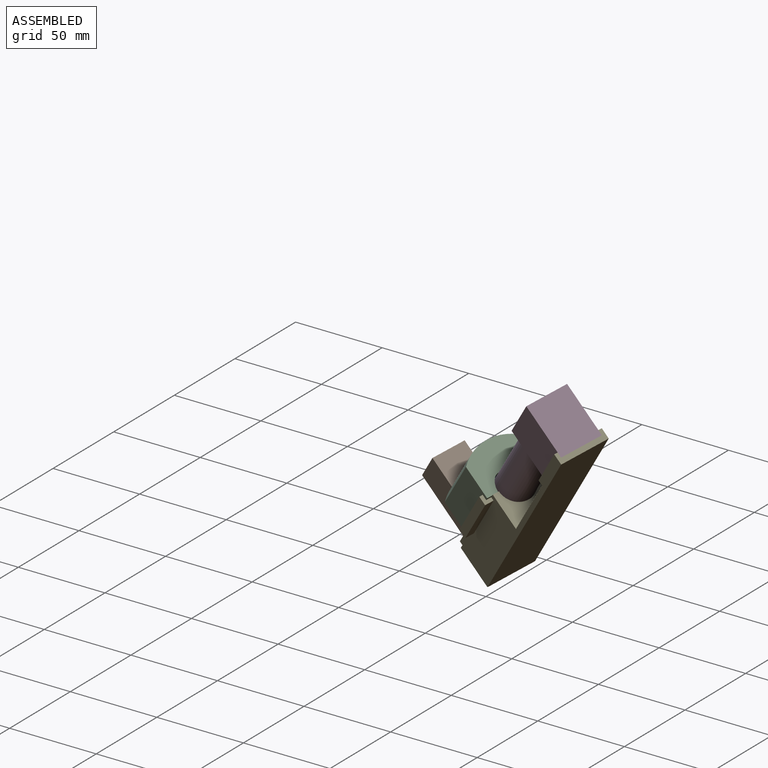
[diagram: assembled view]
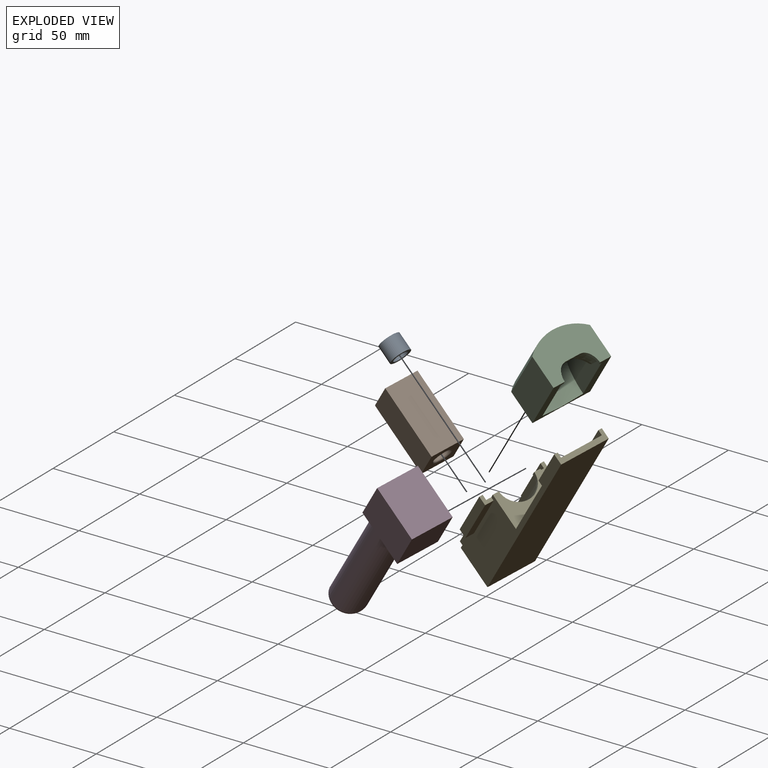
[diagram: exploded view]
GUIDED TOUR — MATED ASSEMBLY (Onshape document 58ab122924d08a0fd03403dd, AutoMate assembly 58ab122924d08a0fd03403dd_60d933f2057dc8772b50762a_59f8ce27216a1e3e3a82eb81_default)

This assembly has 5 components, labeled P0..P4 below (a component is one placed occurrence of a part; the same part can appear more than once), held together by 11 mates. A mate is a constraint between two components; its type names the relative motion it leaves free:
  PLANAR — leaves sliding in the plane through the listed point (normal = the listed direction) and rotation about that normal free,
  SLIDER — leaves translation along the listed axis free.
Axis/direction vectors are unit vectors and 'through' points are millimeter coordinates, both in the assembly's world frame.

MATES
  1. PLANAR "Planar 5": P1 <-> P4, direction (0.754, -0.121, -0.646) through (-17.19, -39.83, -32.39) mm
  2. PLANAR "Planar 4": P2 <-> P4, direction (-0.561, 0.395, -0.728) through (3.68, -24.00, -11.01) mm
  3. PLANAR "Planar 9": P3 <-> P4, direction (-0.343, -0.911, -0.230) through (69.82, -102.00, 72.94) mm
  4. PLANAR "Planar 6": P1 <-> P4, direction (-0.343, -0.911, -0.230) through (-26.38, -41.57, -11.83) mm
  5. PLANAR "Planar 10": P3 <-> P4, direction (-0.561, 0.395, -0.728) through (64.18, -80.35, 47.82) mm
  6. SLIDER "Slider 1": P2 <-> P0, axis (0.754, -0.121, -0.646) through (-13.16, -42.00, 11.43) mm
  7. PLANAR "Planar 1": P3 <-> P4, direction (0.754, -0.121, -0.646) through (76.83, -86.95, 55.10) mm
  8. PLANAR "Planar 7": P1 <-> P2, direction (0.561, -0.395, 0.728) through (-17.23, -37.07, -2.00) mm
  9. PLANAR "Planar 2": P4 <-> P2, direction (-0.754, 0.121, 0.646) through (2.30, -42.62, -9.14) mm
  10. PLANAR "Planar 3": P2 <-> P4, direction (0.343, 0.911, 0.230) through (15.73, -32.50, 4.63) mm
  11. PLANAR "Planar 8": P0 <-> P3, direction (0.754, -0.121, -0.646) through (-0.34, -44.05, 0.43) mm

ASSEMBLY ORDER
  1. P4 — the base component [order verified]
  2. P2 [order verified]
  3. P0 [order verified]
  4. P3 [order verified]
  5. P1 [order verified]
(P2 verified with a relaxed clearance tolerance: the source model stores slight part interference there.)
Order-tag legend:
  [order verified] — this step's position reverses a verified removal order: the component was checked to insert without passing through the ones already placed.

Of the 5 components, 1 carries the full construction recipe — the FeatureScript program that regenerates the part's solid from scratch; the rest are supplied as boundary geometry only.
Each toured component is shown spotlighted twice — in the assembled view, then in the exploded view, where a leader line traces a displaced component back to its assembled socket (saturated green if recipe-attached, orange if geometry-only; every other component desaturated gray) — followed by its recipe or geometry summary and the mates that hold it.
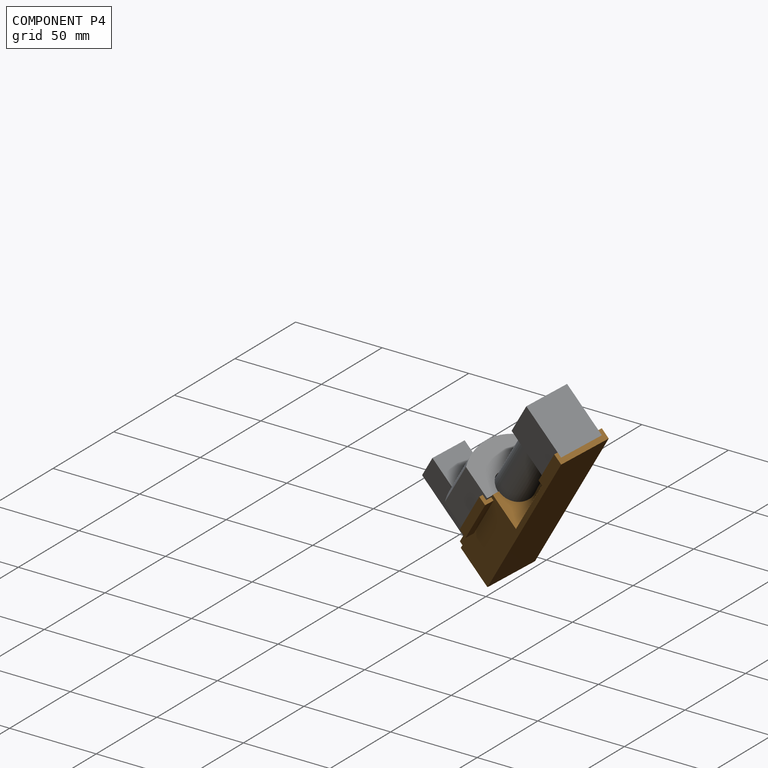
[diagram: component P4 — assembled]
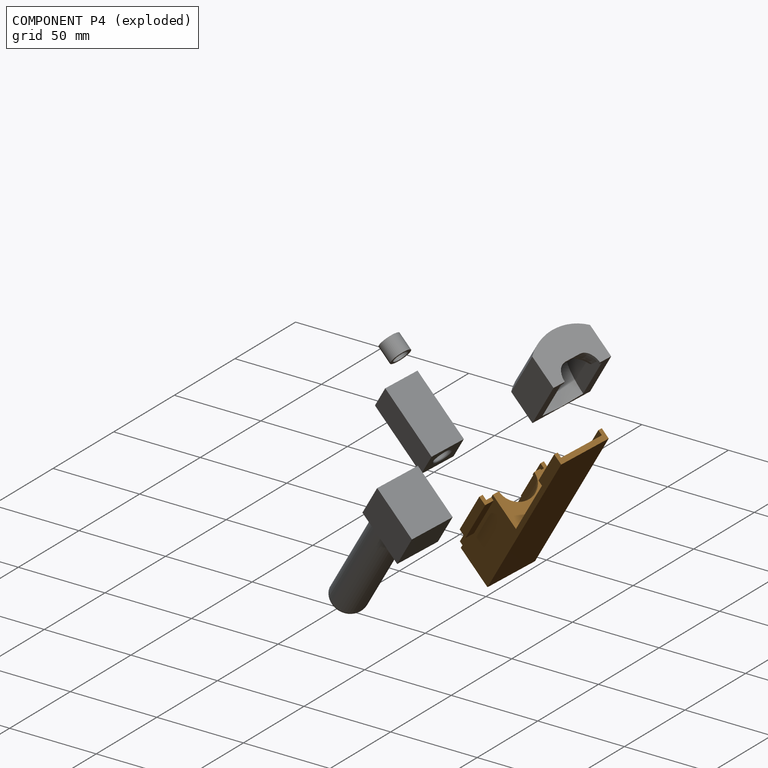
[diagram: component P4 — exploded]
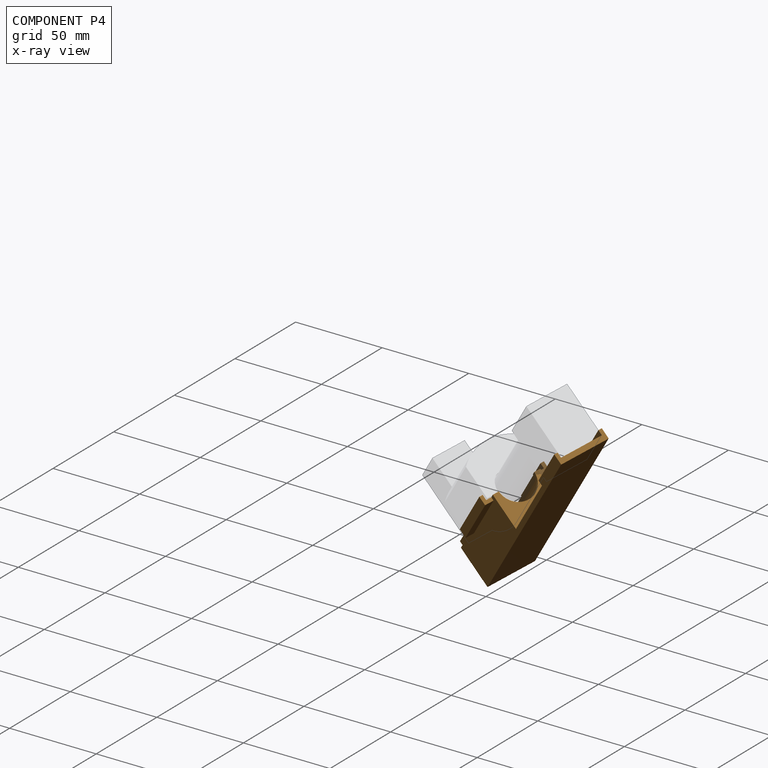
[diagram: component P4 — x-ray view]
COMPONENT P4 — geometry summary (no construction recipe available for this part):
  bounding box: 150.0 x 38.0 x 26.0 mm
  B-rep topology: 1 solid, 48 faces, 272 edges
  volume: 41215 mm^3 (28% of its bounding box)
  symmetry: mirror-symmetric across its x mid-plane
Held by: PLANAR mate "Planar 5" to P1; PLANAR mate "Planar 4" to P2; PLANAR mate "Planar 9" to P3; PLANAR mate "Planar 6" to P1; PLANAR mate "Planar 10" to P3; PLANAR mate "Planar 1" to P3; PLANAR mate "Planar 2" to P2; PLANAR mate "Planar 3" to P2.
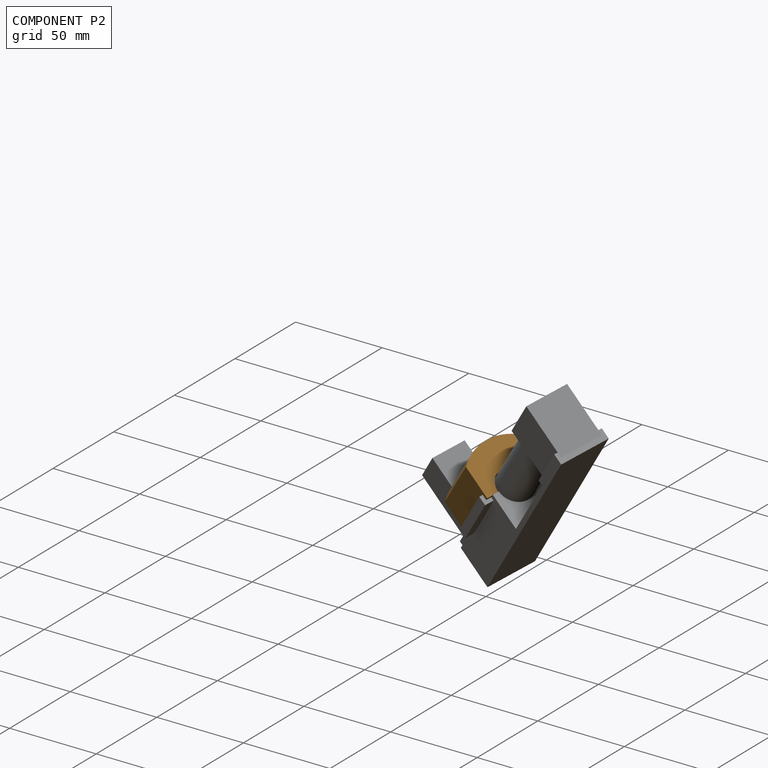
[diagram: component P2 — assembled]
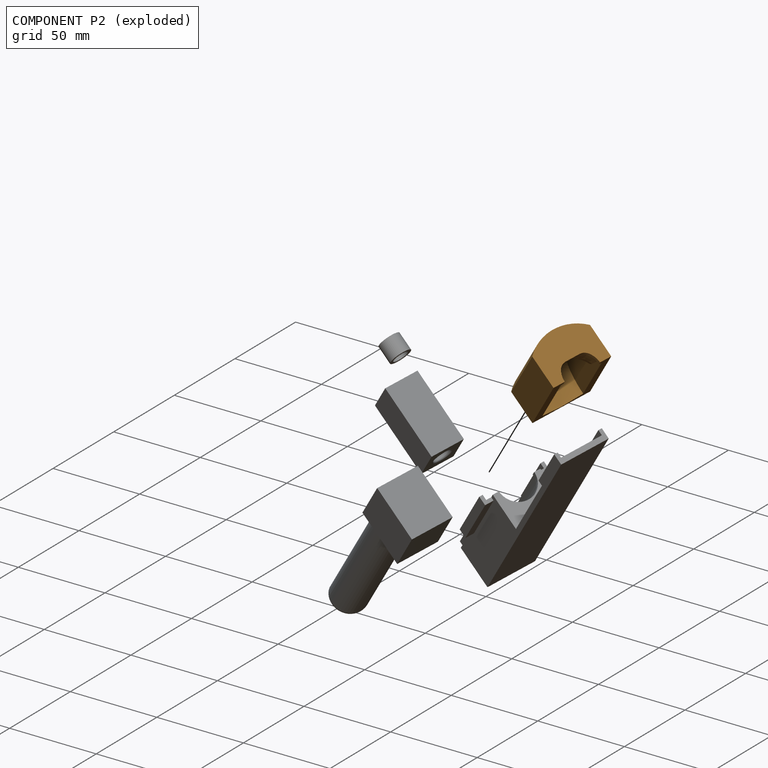
[diagram: component P2 — exploded]
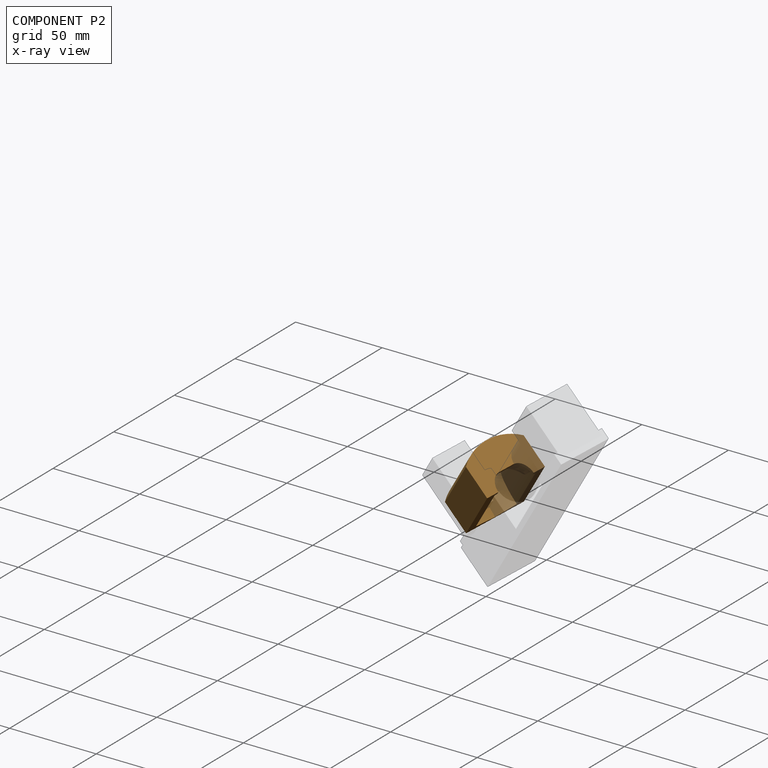
[diagram: component P2 — x-ray view]
COMPONENT P2 — geometry summary (no construction recipe available for this part):
  bounding box: 47.2 x 43.8 x 25.8 mm
  B-rep topology: 1 solid, 32 faces, 209 edges
  volume: 19322 mm^3 (36% of its bounding box)
  symmetry: mirror-symmetric across its z mid-plane
Held by: PLANAR mate "Planar 4" to P4; SLIDER mate "Slider 1" to P0; PLANAR mate "Planar 7" to P1; PLANAR mate "Planar 2" to P4; PLANAR mate "Planar 3" to P4.
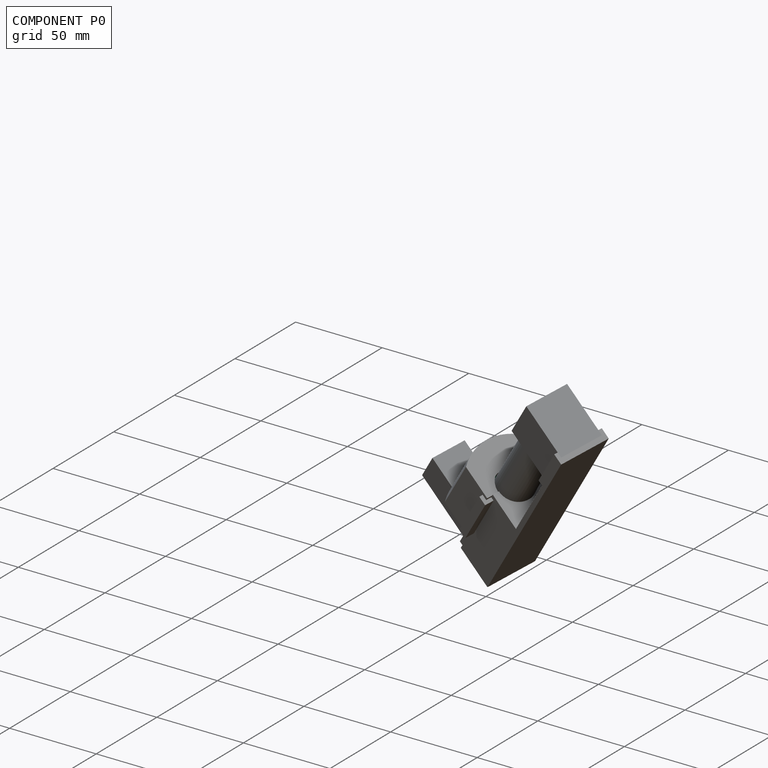
[diagram: component P0 — assembled]
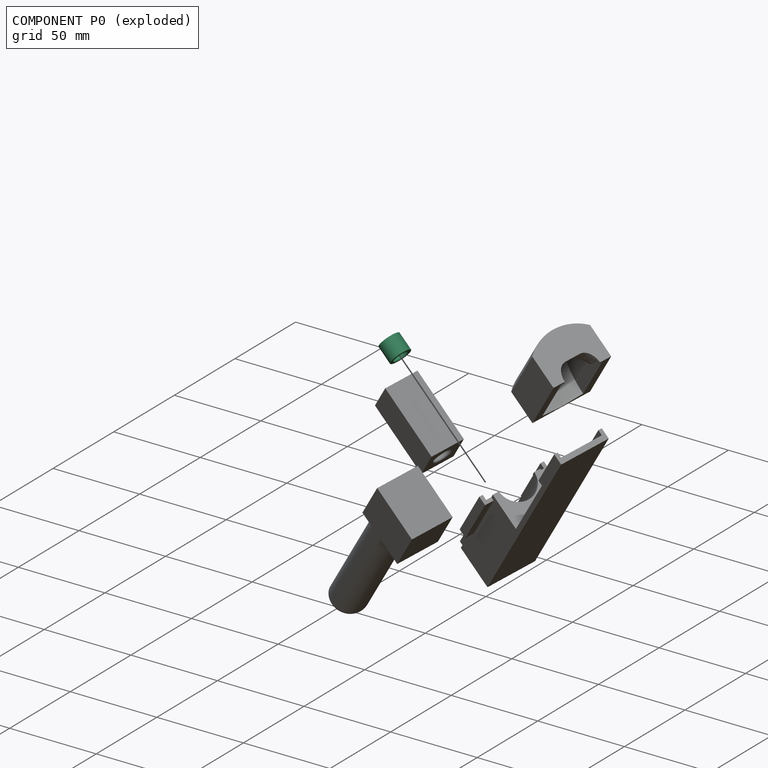
[diagram: component P0 — exploded]
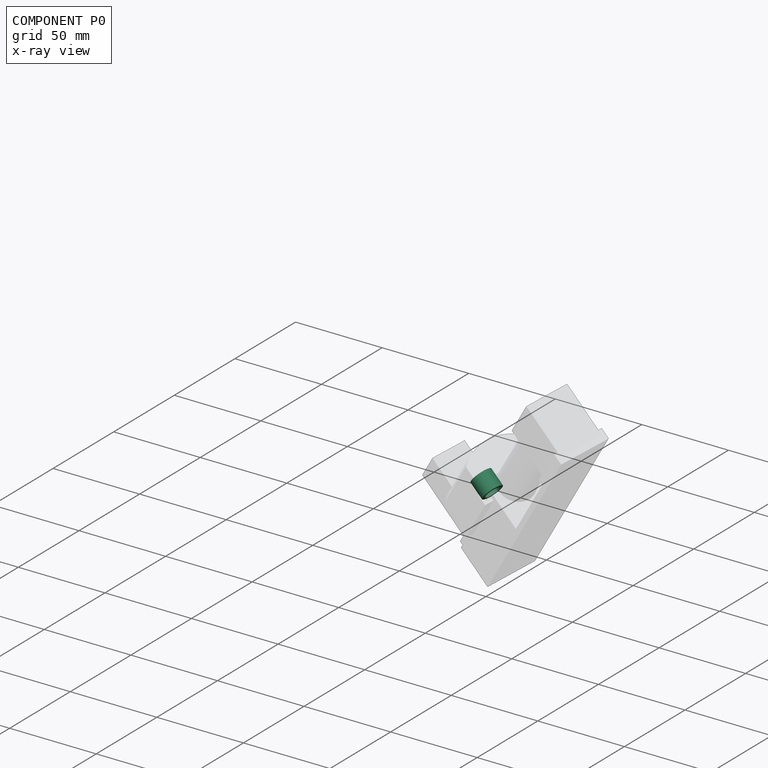
[diagram: component P0 — x-ray view]
COMPONENT P0 — recipe-attached (CADFS 00547569, mesh-verified: the recipe's output STEP matches this component's geometry to below the mesh-comparison resolution (tessellation chordal tolerance ~0.0295 mm)).
Held by: SLIDER mate "Slider 1" to P2; PLANAR mate "Planar 8" to P3.
Construction recipe (FeatureScript — the CAD program that rebuilds this solid; sketch coordinates are in the units given by the * unit suffixes, e.g. mm):

FeatureScript 1511;
import(path : "onshape/std/geometry.fs", version : "1511.0");
import(path : "onshape/std/common.fs", version : "1511.0");
const mm = millimeter;
const VERTEX = EntityType.VERTEX;
const EDGE = EntityType.EDGE;
const FACE = EntityType.FACE;
const BODY = EntityType.BODY;
function v(x, y){return vector(x, y);}
function OD(order){return orderDisambiguation(order);}
function OSD(set){return originalSetDisambiguation(set);}
function TD(topology){return topologyDisambiguation(topology);}
function TDD(query){return trueDependencyDisambiguation(query);}
function sQuery(a, b, c) {return sketchEntityQuery(a, b, c);}

annotation { "Feature Type Name" : "Feature", "Feature Type Description" : "" }
export const myFeature = defineFeature(function(context is Context, id is Id, definition is map)
    precondition{}
    {
        {
            var Q0;
            Q0=qCreatedBy(makeId("Top.planeOp"),FACE);
            var sketch = newSketch(context, id + "F0", { "sketchPlane" : qUnion([Q0])});
            skCircle(sketch, "E0", {"center": v(0, -0.55) * mm, "radius": 6 * mm});
            skCircle(sketch, "E1", {"center": v(0, -0.55) * mm, "radius": 4.25 * mm});
            skSolve(sketch);
        }
        {
            var Q0;
            Q0=makeQuery(id+"F0.imprint","IMPRINT",FACE,{"disambiguationData":[TD([[makeQuery(id+"F0.imprint","IMPRINT",EDGE,{"derivedFrom":sQuery(id+"F0.wireOp",EDGE,"E0")}),1.0]])]});
            var Q1;
            Q1=makeQuery(id+"F0.imprint","IMPRINT",FACE,{"disambiguationData":[TD([[makeQuery(id+"F0.imprint","IMPRINT",EDGE,{"derivedFrom":sQuery(id+"F0.wireOp",EDGE,"E1")}),1.0]])]});
            extrude(context, id + "F1", {"entities" : qUnion([Q0, Q1]), "depth" : 10 * mm});
        }
        {
            var Q0;
            Q0=makeQuery(id+"F0.imprint","IMPRINT",FACE,{"disambiguationData":[TD([[makeQuery(id+"F0.imprint","IMPRINT",EDGE,{"derivedFrom":sQuery(id+"F0.wireOp",EDGE,"E1")}),1.0]])]});
            extrude(context, id + "F2", {"entities" : qUnion([Q0]), "operationType" : NewBodyOperationType.REMOVE, "depth" : 8 * mm});
        }
        {
            var Q0;
            Q0=sQuery(id+"F0.wireOp",VERTEX,"E0.center");
            var Q1;
            Q1=makeQuery(id+"F1.opExtrude","SWEPT_BODY",BODY,{"disambiguationData":[OSD([sQuery(id+"F0.wireOp",EDGE,"E0")])]});
            hole(context, id + "F3", {"style" : HoleStyle.SIMPLE, "endStyle" : HoleEndStyle.THROUGH, "oppositeDirection" : true, "holeDiameter" : 1.5 * mm, "isTappedThrough" : true, "tappedDepth" : 12 * mm, "tapClearance" : 3, "locations" : qUnion([Q0]), "scope" : qUnion([Q1])});
        }
    });
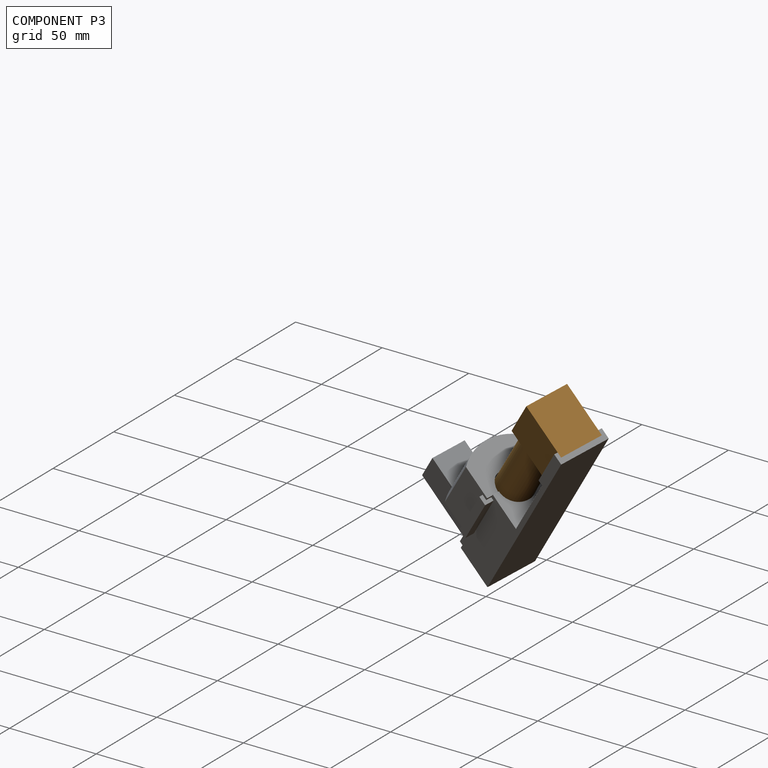
[diagram: component P3 — assembled]
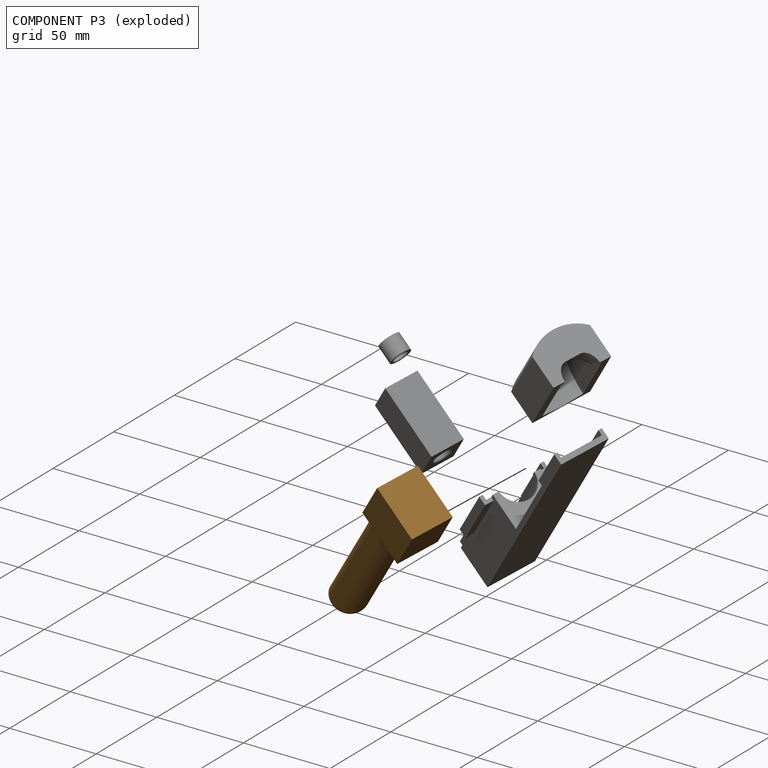
[diagram: component P3 — exploded]
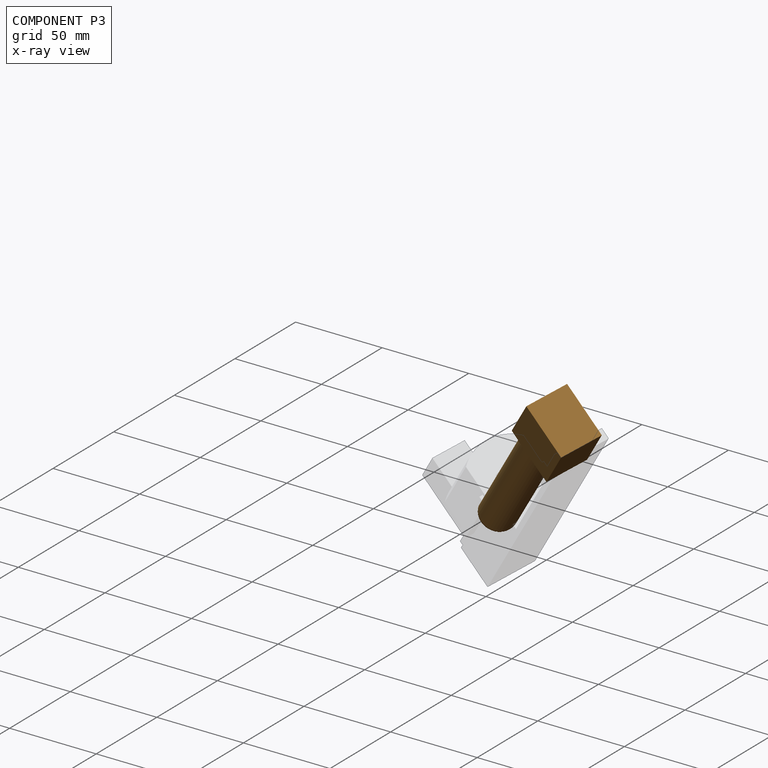
[diagram: component P3 — x-ray view]
COMPONENT P3 — geometry summary (no construction recipe available for this part):
  bounding box: 126.3 x 32.1 x 29.1 mm
  B-rep topology: 1 solid, 23 faces, 100 edges
  volume: 49910 mm^3 (42% of its bounding box)
  symmetry: mirror-symmetric across its y mid-plane
Held by: PLANAR mate "Planar 9" to P4; PLANAR mate "Planar 10" to P4; PLANAR mate "Planar 1" to P4; PLANAR mate "Planar 8" to P0.
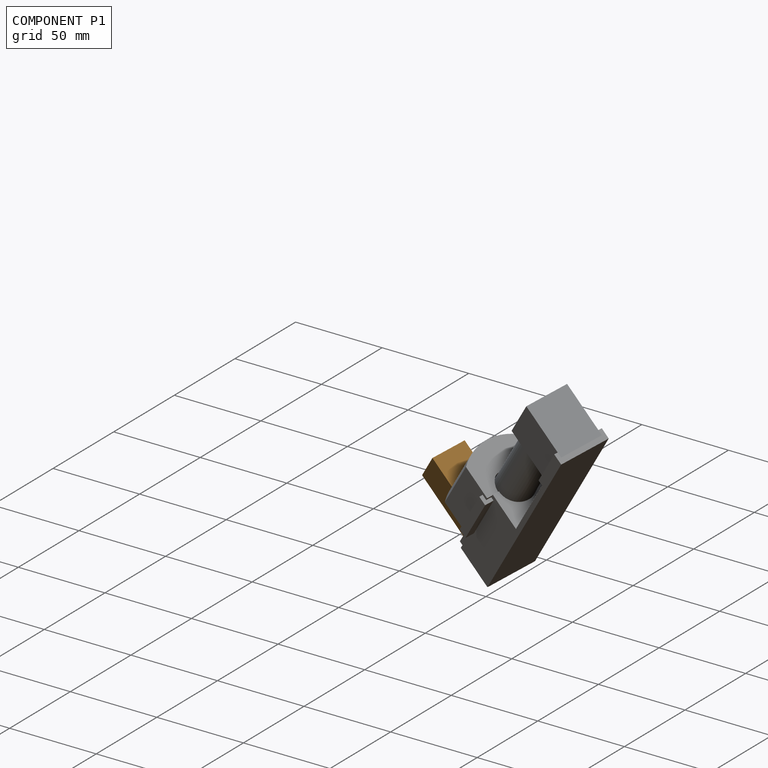
[diagram: component P1 — assembled]
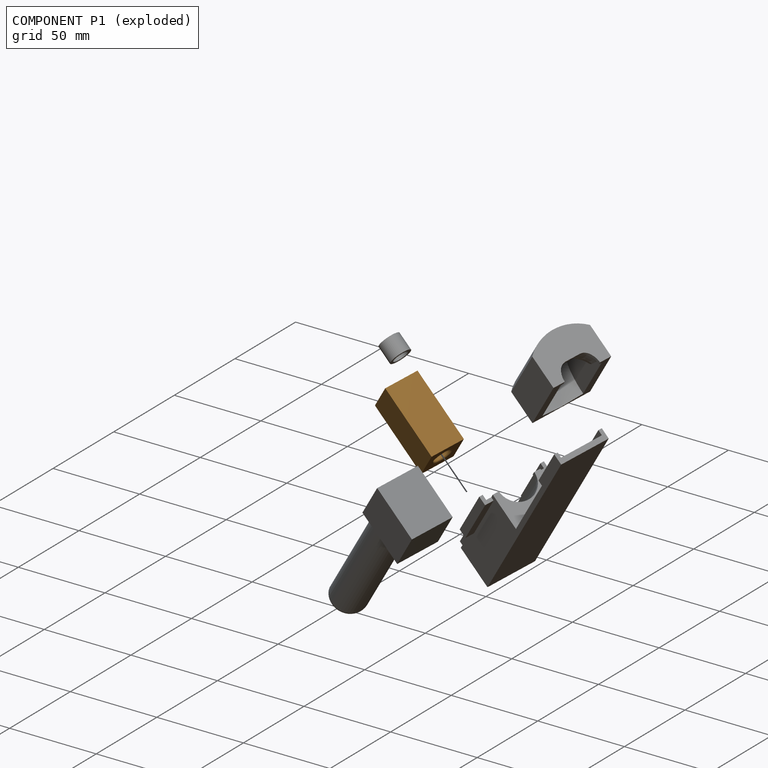
[diagram: component P1 — exploded]
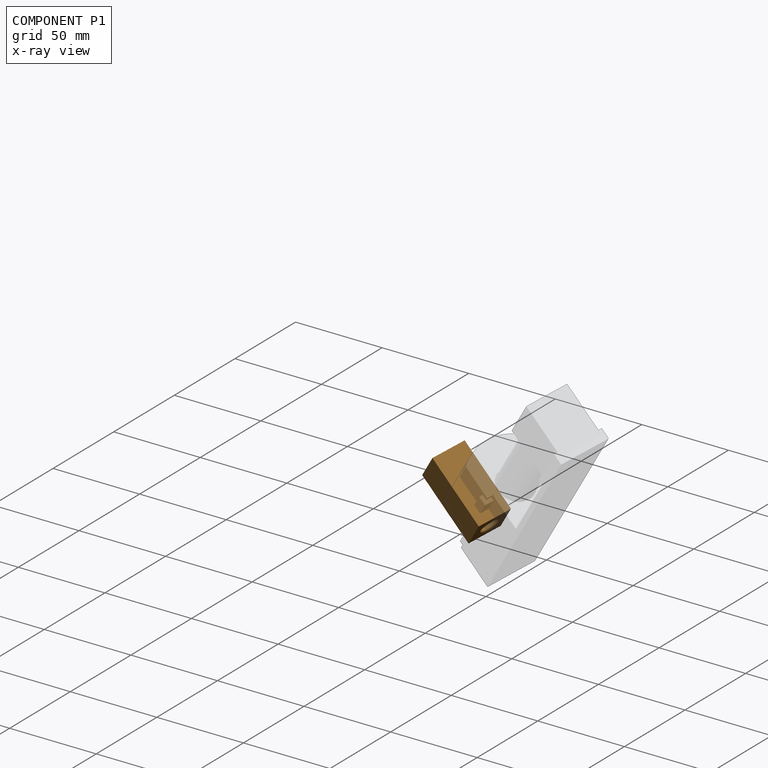
[diagram: component P1 — x-ray view]
COMPONENT P1 — geometry summary (no construction recipe available for this part):
  bounding box: 40.0 x 21.0 x 19.0 mm
  B-rep topology: 1 solid, 9 faces, 38 edges
  volume: 12804 mm^3 (80% of its bounding box)
  symmetry: 2-fold rotationally symmetric about the x axis; 2-fold rotationally symmetric about the y axis; 2-fold rotationally symmetric about the z axis; mirror-symmetric across its x mid-plane, y mid-plane, z mid-plane
Held by: PLANAR mate "Planar 5" to P4; PLANAR mate "Planar 6" to P4; PLANAR mate "Planar 7" to P2.
PROVENANCE & LICENSES
Assembly (occurrences, transforms, mates, per-part STEP geometry): AutoMate dataset, Zenodo record 7776208, CC0.
Construction recipes: CADFS (HuggingFace VladPyatov/CADFS, CC-BY-4.0, layered over the ABC dataset), FeatureScript reconstruction programs keyed by ABC model id.
Join: ABC meta listings map ABC model id -> Onshape documentId; within a shared document, parts are matched by geometric signature (bounding-box dims + volume at 0.1% relative tolerance, exact B-rep face/solid counts).
Verification: 1 of this assembly's 5 components carries a recipe attachment, and every attachment is mesh-verified: the CADFS STEP and the AutoMate member STEP were compared as meshes in their shared local frame (symmetric sampled-point-to-mesh distance); worst across the 1 attachment: below the mesh-comparison resolution (tessellation chordal tolerance ~0.0295 mm) on a 20 mm part.
Renders: orthographic iso camera (az 35 / el 25); the floor grid conveys scale (grid pitch printed in each image; no ruler). In the exploded view each component is displaced by its stored offset vector: the offsets alone carry the explosion direction (mate normal/axis signs are not orientation cues and do not encode it), and separation distances are assigned per mate-chain, not proportionally to assembly-order depth.
